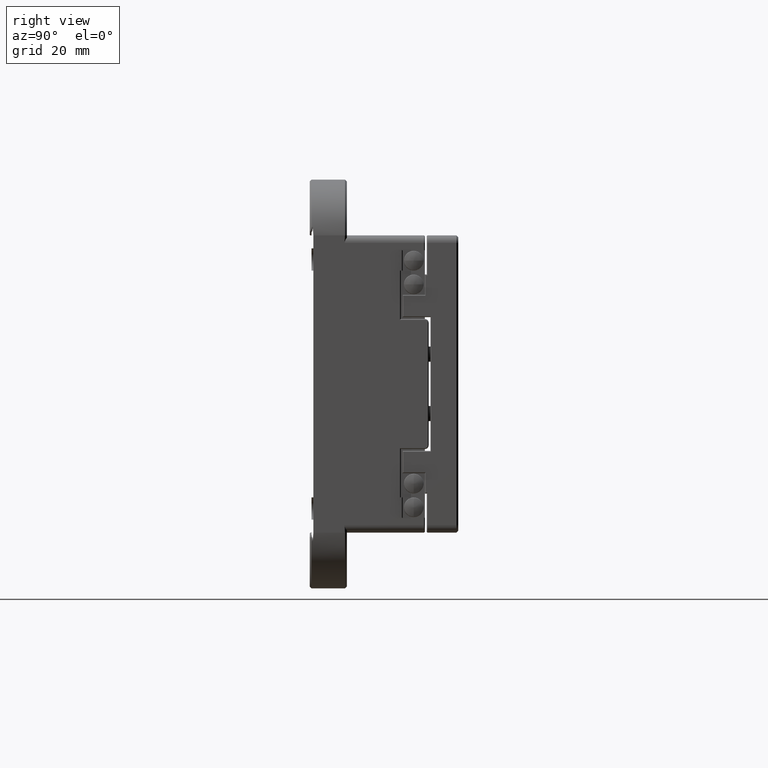
[diagram: clean part render]
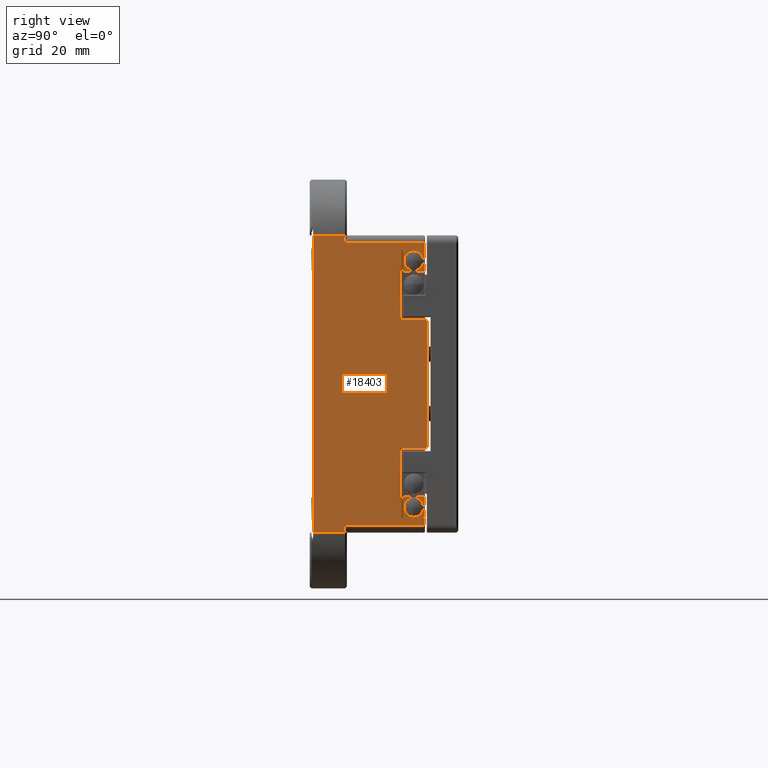
[diagram: same view with one face highlighted and labeled with its STEP entity id]
A machine part, right view. The second image highlights one B-rep face of the part: STEP entity #18403.
In plain terms, the highlighted planar face has unit normal (-1, 0, 0).
Its self-contained STEP definition (entity closure, byte-faithful):
#215 = PLANE ( 'NONE',  #32388 ) ;
#306 = CARTESIAN_POINT ( 'NONE',  ( 295.5016253540470100, 9.367254049578399100, 11.61789066043777300 ) ) ;
#399 = CARTESIAN_POINT ( 'NONE',  ( 295.5016253540470100, 24.80000000000002900, 13.61789066043776800 ) ) ;
#489 = EDGE_CURVE ( 'NONE', #47723, #38478, #13949, .T. ) ;
#1171 = VERTEX_POINT ( 'NONE', #48884 ) ;
#1351 = DIRECTION ( 'NONE',  ( 0.0000000000000000000, 0.7071067811865340300, 0.7071067811865611200 ) ) ;
#1513 = VERTEX_POINT ( 'NONE', #7089 ) ;
#1891 = ORIENTED_EDGE ( 'NONE', *, *, #53516, .F. ) ;
#2198 = DIRECTION ( 'NONE',  ( -0.0000000000000000000, -0.0000000000000000000, -1.000000000000000000 ) ) ;
#2253 = EDGE_CURVE ( 'NONE', #21599, #20495, #51950, .T. ) ;
#2345 = ORIENTED_EDGE ( 'NONE', *, *, #16686, .F. ) ;
#2659 = VERTEX_POINT ( 'NONE', #27535 ) ;
#3549 = CARTESIAN_POINT ( 'NONE',  ( 295.5016253540470100, 30.63999999999999000, 13.61789066043779600 ) ) ;
#4032 = CARTESIAN_POINT ( 'NONE',  ( 295.5016253539497500, 30.99999999999998900, 66.11789066043776600 ) ) ;
#4087 = DIRECTION ( 'NONE',  ( 0.0000000000000000000, 0.7071067811865474600, 0.7071067811865474600 ) ) ;
#4338 = CARTESIAN_POINT ( 'NONE',  ( 295.5016253540470100, 30.99999999999998900, 19.11789066043775900 ) ) ;
#4469 = DIRECTION ( 'NONE',  ( -1.000000000000000000, -0.0000000000000000000, -0.0000000000000000000 ) ) ;
#4619 = LINE ( 'NONE', #47651, #23331 ) ;
#4677 = CARTESIAN_POINT ( 'NONE',  ( 295.5016253540634400, 27.99999999999998600, 82.81789066043775400 ) ) ;
#5030 = ORIENTED_EDGE ( 'NONE', *, *, #45442, .F. ) ;
#5043 = EDGE_CURVE ( 'NONE', #17578, #64039, #62876, .T. ) ;
#5412 = CARTESIAN_POINT ( 'NONE',  ( 295.5016253540470100, 9.367254049578450600, 87.61789066043776600 ) ) ;
#5946 = CARTESIAN_POINT ( 'NONE',  ( 295.5016253540470100, 26.99992857325062800, 80.01789066043775700 ) ) ;
#6133 = CARTESIAN_POINT ( 'NONE',  ( 295.5016253540549100, 28.76541045425929600, 80.28083590417529100 ) ) ;
#6292 = CARTESIAN_POINT ( 'NONE',  ( 295.5016253540470100, 24.80000000000001100, 89.61789066043776600 ) ) ;
#6295 = VERTEX_POINT ( 'NONE', #32420 ) ;
#6384 = LINE ( 'NONE', #25839, #48362 ) ;
#6466 = CARTESIAN_POINT ( 'NONE',  ( 295.5016253540470600, 30.99999999999999300, 49.61789066043777300 ) ) ;
#6989 = VERTEX_POINT ( 'NONE', #53211 ) ;
#7089 = CARTESIAN_POINT ( 'NONE',  ( 295.5016253540470100, 30.99999999999998600, 85.25789066043776600 ) ) ;
#7223 = ORIENTED_EDGE ( 'NONE', *, *, #30059, .F. ) ;
#7231 = DIRECTION ( 'NONE',  ( -0.0000000000000000000, -1.000000000000000000, 0.0000000000000000000 ) ) ;
#8061 = EDGE_CURVE ( 'NONE', #9156, #49940, #62502, .T. ) ;
#8071 = CARTESIAN_POINT ( 'NONE',  ( 295.5016253540470100, 25.00000000000000000, 13.97789066043780300 ) ) ;
#8201 = LINE ( 'NONE', #18323, #43244 ) ;
#8615 = VERTEX_POINT ( 'NONE', #34646 ) ;
#8686 = DIRECTION ( 'NONE',  ( -0.0000000000000000000, -0.0000000000000000000, -1.000000000000000000 ) ) ;
#8695 = DIRECTION ( 'NONE',  ( -0.0000000000000000000, -1.000000000000000000, 0.0000000000000000000 ) ) ;
#8953 = EDGE_CURVE ( 'NONE', #6989, #8615, #41439, .T. ) ;
#9156 = VERTEX_POINT ( 'NONE', #53710 ) ;
#9214 = CARTESIAN_POINT ( 'NONE',  ( 295.5016253540013600, 31.80000000004564600, 33.11789066043775900 ) ) ;
#9990 = VERTEX_POINT ( 'NONE', #40255 ) ;
#10214 = VECTOR ( 'NONE', #13193, 1000.000000000000000 ) ;
#10254 = CARTESIAN_POINT ( 'NONE',  ( 295.5016253540470100, 25.35999999999998900, 19.21789066043781700 ) ) ;
#10720 = DIRECTION ( 'NONE',  ( 0.0000000000000000000, 1.000000000000000000, -0.0000000000000000000 ) ) ;
#10848 = DIRECTION ( 'NONE',  ( -0.0000000000000000000, -1.000000000000000000, 0.0000000000000000000 ) ) ;
#11097 = CARTESIAN_POINT ( 'NONE',  ( 295.5016253540470100, 30.99999999999998900, 66.91789066043776300 ) ) ;
#11220 = EDGE_CURVE ( 'NONE', #32802, #35915, #27556, .T. ) ;
#11395 = ORIENTED_EDGE ( 'NONE', *, *, #11220, .F. ) ;
#11440 = EDGE_CURVE ( 'NONE', #52682, #49940, #14294, .T. ) ;
#11549 = CARTESIAN_POINT ( 'NONE',  ( 295.5016253540025000, 30.99999999999999300, 66.91789066041917500 ) ) ;
#11657 = ORIENTED_EDGE ( 'NONE', *, *, #26060, .F. ) ;
#11729 = CARTESIAN_POINT ( 'NONE',  ( 295.5016253540470100, 24.99999999999998900, 18.85789066043781000 ) ) ;
#11885 = CARTESIAN_POINT ( 'NONE',  ( 295.5016253540470100, 30.99999999999999600, 13.97789066043781700 ) ) ;
#11900 = VECTOR ( 'NONE', #12127, 1000.000000000000000 ) ;
#12127 = DIRECTION ( 'NONE',  ( -0.0000000000000000000, -1.000000000000000000, 0.0000000000000000000 ) ) ;
#12173 = LINE ( 'NONE', #20945, #55701 ) ;
#12892 = CARTESIAN_POINT ( 'NONE',  ( 295.5016253540470100, 30.99999999999998900, 13.61789066043780800 ) ) ;
#13193 = DIRECTION ( 'NONE',  ( -0.0000000000000000000, -1.000000000000000000, 0.0000000000000000000 ) ) ;
#13243 = DIRECTION ( 'NONE',  ( -0.0000000000000000000, -0.0000000000000000000, -1.000000000000000000 ) ) ;
#13397 = CARTESIAN_POINT ( 'NONE',  ( 295.5016253540470100, 30.99999999999998900, 85.61789066043778000 ) ) ;
#13446 = CARTESIAN_POINT ( 'NONE',  ( 295.5016253540470100, 9.367254049578450600, 87.61789066043776600 ) ) ;
#13500 = AXIS2_PLACEMENT_3D ( 'NONE', #18944, #24801, #53730 ) ;
#13582 = VERTEX_POINT ( 'NONE', #399 ) ;
#13645 = VECTOR ( 'NONE', #16153, 1000.000000000000000 ) ;
#13825 = VECTOR ( 'NONE', #31893, 1000.000000000000000 ) ;
#13949 = LINE ( 'NONE', #43152, #21733 ) ;
#14076 = CIRCLE ( 'NONE', #23520, 0.7999999999756396400 ) ;
#14110 = CARTESIAN_POINT ( 'NONE',  ( 295.5016253540470100, 9.367254049578399100, 11.61789066043777300 ) ) ;
#14237 = CIRCLE ( 'NONE', #20388, 2.650000000003999800 ) ;
#14294 = LINE ( 'NONE', #33536, #25934 ) ;
#14808 = EDGE_CURVE ( 'NONE', #18347, #48309, #30198, .T. ) ;
#14849 = DIRECTION ( 'NONE',  ( 0.0000000000000000000, 0.0000000000000000000, 1.000000000000000000 ) ) ;
#15385 = ORIENTED_EDGE ( 'NONE', *, *, #52149, .T. ) ;
#15517 = VECTOR ( 'NONE', #50923, 1000.000000000000000 ) ;
#15526 = ORIENTED_EDGE ( 'NONE', *, *, #489, .F. ) ;
#15598 = ORIENTED_EDGE ( 'NONE', *, *, #64114, .F. ) ;
#15692 = LINE ( 'NONE', #28186, #27352 ) ;
#15735 = EDGE_CURVE ( 'NONE', #1171, #63504, #61156, .T. ) ;
#15997 = VECTOR ( 'NONE', #45515, 1000.000000000000000 ) ;
#16010 = EDGE_CURVE ( 'NONE', #13582, #30056, #12173, .T. ) ;
#16072 = VERTEX_POINT ( 'NONE', #46990 ) ;
#16153 = DIRECTION ( 'NONE',  ( -0.0000000000000000000, -1.000000000000000000, 0.0000000000000000000 ) ) ;
#16276 = LINE ( 'NONE', #6292, #26382 ) ;
#16471 = EDGE_CURVE ( 'NONE', #51694, #34252, #25338, .T. ) ;
#16621 = ORIENTED_EDGE ( 'NONE', *, *, #2253, .F. ) ;
#16686 = EDGE_CURVE ( 'NONE', #36566, #1513, #26155, .T. ) ;
#17118 = LINE ( 'NONE', #38520, #20987 ) ;
#17448 = CARTESIAN_POINT ( 'NONE',  ( 295.5016253540470100, 25.35999999999998500, 80.01789066043775700 ) ) ;
#17578 = VERTEX_POINT ( 'NONE', #40900 ) ;
#17685 = DIRECTION ( 'NONE',  ( 0.0000000000000000000, -0.7071067811865474600, 0.7071067811865474600 ) ) ;
#18114 = DIRECTION ( 'NONE',  ( 0.0000000000000000000, 1.000000000000000000, -0.0000000000000000000 ) ) ;
#18122 = FACE_OUTER_BOUND ( 'NONE', #59007, .T. ) ;
#18323 = CARTESIAN_POINT ( 'NONE',  ( 295.5016253540470100, 30.99999999999998900, 11.61789066043778000 ) ) ;
#18347 = VERTEX_POINT ( 'NONE', #54636 ) ;
#18403 = ADVANCED_FACE ( 'NONE', ( #18122 ), #215, .F. ) ;
#18654 = DIRECTION ( 'NONE',  ( 6.123233995736767300E-017, -6.123233995736420900E-017, 1.000000000000000000 ) ) ;
#18944 = CARTESIAN_POINT ( 'NONE',  ( 295.5016253540634400, 27.99999999999998600, 82.81789066043775400 ) ) ;
#18958 = CARTESIAN_POINT ( 'NONE',  ( 295.5016253540470100, 30.99999999999998600, 80.37789066043775700 ) ) ;
#19056 = CARTESIAN_POINT ( 'NONE',  ( 295.5016253540470100, 9.499999999999955600, 9.617890660437764100 ) ) ;
#19620 = CARTESIAN_POINT ( 'NONE',  ( 295.5016253540470100, 24.99999999999998900, 89.61789066043776600 ) ) ;
#19686 = CARTESIAN_POINT ( 'NONE',  ( 295.5016253540470100, 24.99999999999998600, 85.25789066043776600 ) ) ;
#19789 = CIRCLE ( 'NONE', #52398, 0.8000000000265572500 ) ;
#19828 = ORIENTED_EDGE ( 'NONE', *, *, #57166, .F. ) ;
#19971 = VECTOR ( 'NONE', #28119, 1000.000000000000000 ) ;
#20239 = LINE ( 'NONE', #58465, #60620 ) ;
#20388 = AXIS2_PLACEMENT_3D ( 'NONE', #55239, #25257, #40490 ) ;
#20447 = EDGE_CURVE ( 'NONE', #57450, #2659, #55910, .T. ) ;
#20495 = VERTEX_POINT ( 'NONE', #44832 ) ;
#20723 = VERTEX_POINT ( 'NONE', #27594 ) ;
#20941 = DIRECTION ( 'NONE',  ( -1.000000000000000000, 0.0000000000000000000, 0.0000000000000000000 ) ) ;
#20945 = CARTESIAN_POINT ( 'NONE',  ( 295.5016253540470100, 30.99999999999998900, 13.61789066043776800 ) ) ;
#20987 = VECTOR ( 'NONE', #8695, 1000.000000000000000 ) ;
#21233 = VECTOR ( 'NONE', #25343, 1000.000000000000000 ) ;
#21251 = EDGE_CURVE ( 'NONE', #35915, #43774, #24731, .T. ) ;
#21427 = CARTESIAN_POINT ( 'NONE',  ( 295.5016253540470100, 30.99999999999998600, 80.37789066043774300 ) ) ;
#21428 = CARTESIAN_POINT ( 'NONE',  ( 295.5016253540470100, 24.99999999999998900, 18.85789066043780300 ) ) ;
#21481 = VECTOR ( 'NONE', #37633, 1000.000000000000100 ) ;
#21599 = VERTEX_POINT ( 'NONE', #19686 ) ;
#21733 = VECTOR ( 'NONE', #28089, 1000.000000000000000 ) ;
#22053 = CARTESIAN_POINT ( 'NONE',  ( 295.5016253540470100, 31.79999999999998600, 89.61789066043776600 ) ) ;
#22566 = CARTESIAN_POINT ( 'NONE',  ( 295.5016253540470100, 30.99999999999998900, 80.01789066043775700 ) ) ;
#22651 = VECTOR ( 'NONE', #1351, 999.9999999999998900 ) ;
#22681 = DIRECTION ( 'NONE',  ( 0.0000000000000000000, 1.000000000000000000, -0.0000000000000000000 ) ) ;
#22870 = CIRCLE ( 'NONE', #46015, 2.649999999940311200 ) ;
#23102 = DIRECTION ( 'NONE',  ( -0.0000000000000000000, -1.000000000000000000, 0.0000000000000000000 ) ) ;
#23331 = VECTOR ( 'NONE', #32876, 1000.000000000000000 ) ;
#23345 = ORIENTED_EDGE ( 'NONE', *, *, #14808, .T. ) ;
#23377 = EDGE_CURVE ( 'NONE', #25503, #50863, #51004, .T. ) ;
#23520 = AXIS2_PLACEMENT_3D ( 'NONE', #4032, #4469, #64243 ) ;
#23790 = CARTESIAN_POINT ( 'NONE',  ( 295.5016253540065900, 27.99999999999998600, 16.41789066043781300 ) ) ;
#23862 = CARTESIAN_POINT ( 'NONE',  ( 295.5016253540470100, 9.500000000000001800, 89.61789066043776600 ) ) ;
#24376 = DIRECTION ( 'NONE',  ( 0.0000000000000000000, 1.000000000000000000, -0.0000000000000000000 ) ) ;
#24731 = LINE ( 'NONE', #61615, #13825 ) ;
#24749 = ORIENTED_EDGE ( 'NONE', *, *, #57097, .F. ) ;
#24801 = DIRECTION ( 'NONE',  ( 1.000000000000000000, 0.0000000000000000000, 0.0000000000000000000 ) ) ;
#24856 = LINE ( 'NONE', #40726, #62923 ) ;
#24943 = DIRECTION ( 'NONE',  ( 0.0000000000000000000, 0.0000000000000000000, 1.000000000000000000 ) ) ;
#25118 = LINE ( 'NONE', #50117, #21233 ) ;
#25253 = ORIENTED_EDGE ( 'NONE', *, *, #5043, .F. ) ;
#25257 = DIRECTION ( 'NONE',  ( 1.000000000000000000, -0.0000000000000000000, -0.0000000000000000000 ) ) ;
#25290 = VERTEX_POINT ( 'NONE', #11885 ) ;
#25338 = LINE ( 'NONE', #28200, #21481 ) ;
#25343 = DIRECTION ( 'NONE',  ( -0.0000000000000000000, -0.7071067811865473500, -0.7071067811865477900 ) ) ;
#25462 = VERTEX_POINT ( 'NONE', #62700 ) ;
#25503 = VERTEX_POINT ( 'NONE', #19056 ) ;
#25839 = CARTESIAN_POINT ( 'NONE',  ( 295.5016253540470100, 30.99999999999999300, 49.61789066043777300 ) ) ;
#25934 = VECTOR ( 'NONE', #18114, 1000.000000000000000 ) ;
#26060 = EDGE_CURVE ( 'NONE', #39843, #35275, #29234, .T. ) ;
#26089 = ORIENTED_EDGE ( 'NONE', *, *, #16010, .F. ) ;
#26155 = LINE ( 'NONE', #54083, #49420 ) ;
#26285 = CARTESIAN_POINT ( 'NONE',  ( 295.5016253540551900, 27.25639673928181100, 80.27435882646894100 ) ) ;
#26382 = VECTOR ( 'NONE', #13243, 1000.000000000000000 ) ;
#27061 = ORIENTED_EDGE ( 'NONE', *, *, #47102, .F. ) ;
#27068 = CARTESIAN_POINT ( 'NONE',  ( 295.5016253540470100, 24.80000000000001100, 80.11789066043776600 ) ) ;
#27352 = VECTOR ( 'NONE', #18654, 1000.000000000000000 ) ;
#27535 = CARTESIAN_POINT ( 'NONE',  ( 295.5016253540470100, 24.80000000000002200, 19.11789066043775900 ) ) ;
#27556 = LINE ( 'NONE', #12892, #46219 ) ;
#27594 = CARTESIAN_POINT ( 'NONE',  ( 295.5016253540065900, 27.99999999999998600, 13.76789066043381400 ) ) ;
#27942 = VERTEX_POINT ( 'NONE', #33478 ) ;
#28089 = DIRECTION ( 'NONE',  ( -0.0000000000000000000, -0.0000000000000000000, -1.000000000000000000 ) ) ;
#28119 = DIRECTION ( 'NONE',  ( -0.0000000000000000000, -0.0000000000000000000, -1.000000000000000000 ) ) ;
#28186 = CARTESIAN_POINT ( 'NONE',  ( 295.5016253540470100, 0.9999999999999744600, 49.61789066043776600 ) ) ;
#28200 = CARTESIAN_POINT ( 'NONE',  ( 295.5016253540470100, 30.63999999999999000, 19.21789066043781700 ) ) ;
#28343 = VECTOR ( 'NONE', #49815, 1000.000000000000000 ) ;
#28462 = EDGE_CURVE ( 'NONE', #63504, #36566, #29677, .T. ) ;
#28659 = ORIENTED_EDGE ( 'NONE', *, *, #56464, .F. ) ;
#28682 = DIRECTION ( 'NONE',  ( -0.0000000000000000000, -1.000000000000000000, 0.0000000000000000000 ) ) ;
#28930 = LINE ( 'NONE', #18958, #58487 ) ;
#29083 = CARTESIAN_POINT ( 'NONE',  ( 295.5016253540470100, 9.499999999999955600, 10.28749424166331600 ) ) ;
#29182 = ORIENTED_EDGE ( 'NONE', *, *, #33411, .F. ) ;
#29234 = LINE ( 'NONE', #19620, #47888 ) ;
#29305 = CARTESIAN_POINT ( 'NONE',  ( 295.5016253540470100, 9.499999999999955600, 9.617890660437764100 ) ) ;
#29677 = LINE ( 'NONE', #13397, #10214 ) ;
#29987 = ORIENTED_EDGE ( 'NONE', *, *, #45078, .F. ) ;
#30056 = VERTEX_POINT ( 'NONE', #62123 ) ;
#30059 = EDGE_CURVE ( 'NONE', #56919, #60299, #16276, .T. ) ;
#30071 = CARTESIAN_POINT ( 'NONE',  ( 295.5016253540470100, 30.99999999999998900, 89.61789066043776600 ) ) ;
#30198 = LINE ( 'NONE', #5946, #46551 ) ;
#30715 = ORIENTED_EDGE ( 'NONE', *, *, #56636, .F. ) ;
#30904 = ORIENTED_EDGE ( 'NONE', *, *, #58520, .F. ) ;
#31039 = VERTEX_POINT ( 'NONE', #6133 ) ;
#31060 = ORIENTED_EDGE ( 'NONE', *, *, #56210, .F. ) ;
#31132 = AXIS2_PLACEMENT_3D ( 'NONE', #23790, #53808, #58993 ) ;
#31295 = DIRECTION ( 'NONE',  ( 0.0000000000000000000, 1.000000000000000000, -0.0000000000000000000 ) ) ;
#31333 = VERTEX_POINT ( 'NONE', #43758 ) ;
#31427 = VERTEX_POINT ( 'NONE', #5412 ) ;
#31689 = CARTESIAN_POINT ( 'NONE',  ( 295.5016253539556600, 30.99999999999999600, 33.11789066043775900 ) ) ;
#31893 = DIRECTION ( 'NONE',  ( -0.0000000000000000000, -0.0000000000000000000, -1.000000000000000000 ) ) ;
#31988 = LINE ( 'NONE', #21428, #22651 ) ;
#32069 = CARTESIAN_POINT ( 'NONE',  ( 295.5016253540462700, 28.01414213562371500, 81.03210422281085800 ) ) ;
#32236 = CARTESIAN_POINT ( 'NONE',  ( 295.5016253540470100, 24.99999999999998600, 80.37789066043775700 ) ) ;
#32388 = AXIS2_PLACEMENT_3D ( 'NONE', #30071, #20941, #40740 ) ;
#32420 = CARTESIAN_POINT ( 'NONE',  ( 295.5016253540350100, 28.76541045429631500, 18.95494541673731000 ) ) ;
#32624 = CARTESIAN_POINT ( 'NONE',  ( 295.5016253540470100, 0.9999999999999713600, 9.617890660437764100 ) ) ;
#32802 = VERTEX_POINT ( 'NONE', #3549 ) ;
#32876 = DIRECTION ( 'NONE',  ( 0.0000000000000000000, 1.000000000000000000, 1.224646799147353200E-016 ) ) ;
#33200 = VECTOR ( 'NONE', #7231, 1000.000000000000000 ) ;
#33308 = LINE ( 'NONE', #42459, #61257 ) ;
#33405 = ORIENTED_EDGE ( 'NONE', *, *, #55053, .F. ) ;
#33411 = EDGE_CURVE ( 'NONE', #30056, #39843, #56374, .T. ) ;
#33478 = CARTESIAN_POINT ( 'NONE',  ( 295.5016253540465500, 29.02835569799681900, 80.01789066043775700 ) ) ;
#33536 = CARTESIAN_POINT ( 'NONE',  ( 295.5016253540470100, 30.99999999999998900, 19.21789066043781700 ) ) ;
#33847 = VECTOR ( 'NONE', #17685, 1000.000000000000100 ) ;
#34109 = EDGE_CURVE ( 'NONE', #18347, #31333, #53961, .T. ) ;
#34119 = DIRECTION ( 'NONE',  ( 0.0000000000000000000, -0.7071067811865474600, -0.7071067811865474600 ) ) ;
#34252 = VERTEX_POINT ( 'NONE', #59382 ) ;
#34646 = CARTESIAN_POINT ( 'NONE',  ( 295.5016253540470100, 24.30000000000001800, 32.31789066043776200 ) ) ;
#34700 = ORIENTED_EDGE ( 'NONE', *, *, #21251, .F. ) ;
#35036 = EDGE_CURVE ( 'NONE', #60113, #25462, #28930, .T. ) ;
#35183 = VECTOR ( 'NONE', #28682, 1000.000000000000000 ) ;
#35275 = VERTEX_POINT ( 'NONE', #11729 ) ;
#35915 = VERTEX_POINT ( 'NONE', #51903 ) ;
#36066 = DIRECTION ( 'NONE',  ( 0.0000000000000000000, 1.224646799147353200E-016, -1.000000000000000000 ) ) ;
#36199 = VECTOR ( 'NONE', #31295, 1000.000000000000000 ) ;
#36353 = ORIENTED_EDGE ( 'NONE', *, *, #8953, .F. ) ;
#36455 = CARTESIAN_POINT ( 'NONE',  ( 295.5016253540470100, 30.79999999999998300, 89.61789066043776600 ) ) ;
#36566 = VERTEX_POINT ( 'NONE', #39196 ) ;
#36944 = DIRECTION ( 'NONE',  ( 0.0000000000000000000, 0.0000000000000000000, 1.000000000000000000 ) ) ;
#37064 = ORIENTED_EDGE ( 'NONE', *, *, #11440, .F. ) ;
#37633 = DIRECTION ( 'NONE',  ( 0.0000000000000000000, 0.7071067811865474600, -0.7071067811865474600 ) ) ;
#38165 = CIRCLE ( 'NONE', #31132, 2.650000000003999800 ) ;
#38477 = CARTESIAN_POINT ( 'NONE',  ( 295.5016253540470100, 9.454981793377987400, 88.28167149029880500 ) ) ;
#38478 = VERTEX_POINT ( 'NONE', #64381 ) ;
#38520 = CARTESIAN_POINT ( 'NONE',  ( 295.5016253540470100, 30.99999999999998900, 80.11789066043776600 ) ) ;
#38616 = ORIENTED_EDGE ( 'NONE', *, *, #41479, .F. ) ;
#38869 = ORIENTED_EDGE ( 'NONE', *, *, #60423, .F. ) ;
#39196 = CARTESIAN_POINT ( 'NONE',  ( 295.5016253540470100, 30.63999999999997600, 85.61789066043778000 ) ) ;
#39386 = ORIENTED_EDGE ( 'NONE', *, *, #61381, .F. ) ;
#39839 = EDGE_CURVE ( 'NONE', #31039, #54647, #39934, .T. ) ;
#39843 = VERTEX_POINT ( 'NONE', #8071 ) ;
#39934 = CIRCLE ( 'NONE', #13500, 2.649999999940311200 ) ;
#40036 = ORIENTED_EDGE ( 'NONE', *, *, #48432, .T. ) ;
#40162 = CARTESIAN_POINT ( 'NONE',  ( 295.5016253540470100, 30.79999999999998300, 85.61789066043778000 ) ) ;
#40255 = CARTESIAN_POINT ( 'NONE',  ( 295.5016253540470100, 9.500000000000001800, 89.61789066043776600 ) ) ;
#40490 = DIRECTION ( 'NONE',  ( 0.0000000000000000000, 1.309225264886180200E-015, 1.000000000000000000 ) ) ;
#40708 = EDGE_CURVE ( 'NONE', #35275, #52682, #31988, .T. ) ;
#40726 = CARTESIAN_POINT ( 'NONE',  ( 295.5016253540470100, 24.80000000000001800, 89.61789066043776600 ) ) ;
#40740 = DIRECTION ( 'NONE',  ( 0.0000000000000000000, 0.0000000000000000000, 1.000000000000000000 ) ) ;
#40900 = CARTESIAN_POINT ( 'NONE',  ( 295.5016253539983500, 31.80000000004861600, 66.11789066043776600 ) ) ;
#41181 = CARTESIAN_POINT ( 'NONE',  ( 295.5016253540470100, 24.30000000000001500, 80.11789066043776600 ) ) ;
#41375 = EDGE_CURVE ( 'NONE', #41641, #9990, #4619, .T. ) ;
#41439 = LINE ( 'NONE', #43526, #35183 ) ;
#41479 = EDGE_CURVE ( 'NONE', #20723, #6295, #38165, .T. ) ;
#41641 = VERTEX_POINT ( 'NONE', #55532 ) ;
#41677 = LINE ( 'NONE', #58918, #45508 ) ;
#42424 = EDGE_CURVE ( 'NONE', #8615, #57450, #33308, .T. ) ;
#42459 = CARTESIAN_POINT ( 'NONE',  ( 295.5016253540470100, 24.30000000000001800, 89.61789066043776600 ) ) ;
#43152 = CARTESIAN_POINT ( 'NONE',  ( 295.5016253540470100, 24.30000000000001100, 89.61789066043776600 ) ) ;
#43244 = VECTOR ( 'NONE', #23102, 1000.000000000000000 ) ;
#43427 = LINE ( 'NONE', #63642, #51949 ) ;
#43526 = CARTESIAN_POINT ( 'NONE',  ( 295.5016253540470100, 30.99999999999998900, 32.31789066043776200 ) ) ;
#43758 = CARTESIAN_POINT ( 'NONE',  ( 295.5016253540470100, 25.35999999999998200, 80.01789066043775700 ) ) ;
#43774 = VERTEX_POINT ( 'NONE', #59513 ) ;
#43819 = CARTESIAN_POINT ( 'NONE',  ( 295.5016253540470100, 30.99999999999998900, 85.61789066043776600 ) ) ;
#43957 = CARTESIAN_POINT ( 'NONE',  ( 295.5016253540470100, 24.99999999999998600, 85.25789066043776600 ) ) ;
#44067 = ORIENTED_EDGE ( 'NONE', *, *, #42424, .F. ) ;
#44178 = VECTOR ( 'NONE', #4087, 1000.000000000000100 ) ;
#44636 = EDGE_CURVE ( 'NONE', #25462, #27942, #59620, .T. ) ;
#44643 = VERTEX_POINT ( 'NONE', #32236 ) ;
#44832 = CARTESIAN_POINT ( 'NONE',  ( 295.5016253540470100, 25.35999999999998200, 85.61789066043775200 ) ) ;
#44910 = CARTESIAN_POINT ( 'NONE',  ( 295.5016253540399600, 26.99992857325063200, 19.21789066043781700 ) ) ;
#45078 = EDGE_CURVE ( 'NONE', #38478, #50608, #50975, .T. ) ;
#45116 = CARTESIAN_POINT ( 'NONE',  ( 295.5016253540470100, 30.99999999999998900, 19.21789066043781700 ) ) ;
#45374 = ORIENTED_EDGE ( 'NONE', *, *, #8061, .T. ) ;
#45396 = CARTESIAN_POINT ( 'NONE',  ( 295.5016253540470100, 30.63999999999998600, 19.21789066043781700 ) ) ;
#45442 = EDGE_CURVE ( 'NONE', #61890, #25503, #56501, .T. ) ;
#45508 = VECTOR ( 'NONE', #63900, 1000.000000000000000 ) ;
#45515 = DIRECTION ( 'NONE',  ( 0.0000000000000000000, 1.000000000000000000, -0.0000000000000000000 ) ) ;
#45713 = DIRECTION ( 'NONE',  ( -0.0000000000000000000, -0.0000000000000000000, -1.000000000000000000 ) ) ;
#46015 = AXIS2_PLACEMENT_3D ( 'NONE', #4677, #54914, #24943 ) ;
#46219 = VECTOR ( 'NONE', #22681, 1000.000000000000000 ) ;
#46318 = LINE ( 'NONE', #17448, #33847 ) ;
#46551 = VECTOR ( 'NONE', #55943, 1000.000000000000000 ) ;
#46773 = EDGE_CURVE ( 'NONE', #34252, #25290, #59200, .T. ) ;
#46990 = CARTESIAN_POINT ( 'NONE',  ( 295.5016253540470100, 29.02835569799681900, 19.21789066043781300 ) ) ;
#47102 = EDGE_CURVE ( 'NONE', #50608, #17578, #14076, .T. ) ;
#47167 = ORIENTED_EDGE ( 'NONE', *, *, #40708, .F. ) ;
#47651 = CARTESIAN_POINT ( 'NONE',  ( 295.5016253540470100, -1.324680762887906900E-014, 89.61789066043776600 ) ) ;
#47723 = VERTEX_POINT ( 'NONE', #41181 ) ;
#47888 = VECTOR ( 'NONE', #14849, 1000.000000000000000 ) ;
#48309 = VERTEX_POINT ( 'NONE', #26285 ) ;
#48362 = VECTOR ( 'NONE', #50841, 1000.000000000000000 ) ;
#48432 = EDGE_CURVE ( 'NONE', #31039, #27942, #52071, .T. ) ;
#48884 = CARTESIAN_POINT ( 'NONE',  ( 295.5016253540470100, 30.79999999999998300, 87.61789066043776600 ) ) ;
#49098 = CARTESIAN_POINT ( 'NONE',  ( 295.5016253540470100, 9.454981793377939400, 10.95410983057671700 ) ) ;
#49120 = VECTOR ( 'NONE', #36066, 1000.000000000000000 ) ;
#49317 = ORIENTED_EDGE ( 'NONE', *, *, #39839, .F. ) ;
#49420 = VECTOR ( 'NONE', #64022, 1000.000000000000100 ) ;
#49815 = DIRECTION ( 'NONE',  ( 0.0000000000000000000, -0.7071067811865507900, 0.7071067811865441300 ) ) ;
#49940 = VERTEX_POINT ( 'NONE', #44910 ) ;
#50117 = CARTESIAN_POINT ( 'NONE',  ( 295.5016253540470600, 28.01414213562373600, 18.20367709806472700 ) ) ;
#50472 = CARTESIAN_POINT ( 'NONE',  ( 295.5016253540634400, 27.99999999999998600, 85.46789066037806000 ) ) ;
#50512 = ORIENTED_EDGE ( 'NONE', *, *, #35036, .F. ) ;
#50608 = VERTEX_POINT ( 'NONE', #11549 ) ;
#50841 = DIRECTION ( 'NONE',  ( 0.0000000000000000000, 1.224646799147353200E-016, -1.000000000000000000 ) ) ;
#50863 = VERTEX_POINT ( 'NONE', #32624 ) ;
#50923 = DIRECTION ( 'NONE',  ( -0.0000000000000000000, 0.7071067811865476800, -0.7071067811865474600 ) ) ;
#50975 = LINE ( 'NONE', #11097, #36199 ) ;
#51004 = LINE ( 'NONE', #56131, #13645 ) ;
#51259 = ORIENTED_EDGE ( 'NONE', *, *, #53520, .F. ) ;
#51694 = VERTEX_POINT ( 'NONE', #45396 ) ;
#51903 = CARTESIAN_POINT ( 'NONE',  ( 295.5016253540470100, 30.80000000000002200, 13.61789066043779800 ) ) ;
#51921 = DIRECTION ( 'NONE',  ( -1.000000000000000000, -0.0000000000000000000, -0.0000000000000000000 ) ) ;
#51949 = VECTOR ( 'NONE', #34119, 1000.000000000000100 ) ;
#51950 = LINE ( 'NONE', #43957, #44178 ) ;
#52071 = LINE ( 'NONE', #32069, #15517 ) ;
#52149 = EDGE_CURVE ( 'NONE', #16072, #6295, #25118, .T. ) ;
#52398 = AXIS2_PLACEMENT_3D ( 'NONE', #31689, #51921, #36944 ) ;
#52609 = ORIENTED_EDGE ( 'NONE', *, *, #34109, .F. ) ;
#52682 = VERTEX_POINT ( 'NONE', #10254 ) ;
#53211 = CARTESIAN_POINT ( 'NONE',  ( 295.5016253540013600, 30.99999999999999600, 32.31789066039210200 ) ) ;
#53286 = DIRECTION ( 'NONE',  ( 0.0000000000000000000, 0.0000000000000000000, 1.000000000000000000 ) ) ;
#53475 = ORIENTED_EDGE ( 'NONE', *, *, #44636, .F. ) ;
#53516 = EDGE_CURVE ( 'NONE', #60299, #47723, #17118, .T. ) ;
#53520 = EDGE_CURVE ( 'NONE', #44643, #21599, #20239, .T. ) ;
#53643 = ORIENTED_EDGE ( 'NONE', *, *, #58250, .F. ) ;
#53710 = CARTESIAN_POINT ( 'NONE',  ( 295.5016253540499100, 27.25639673924468200, 18.96142249444376300 ) ) ;
#53730 = DIRECTION ( 'NONE',  ( 0.0000000000000000000, 0.0000000000000000000, 1.000000000000000000 ) ) ;
#53747 = DIRECTION ( 'NONE',  ( 0.0000000000000000000, -0.7071067811865474600, -0.7071067811865474600 ) ) ;
#53808 = DIRECTION ( 'NONE',  ( 1.000000000000000000, -0.0000000000000000000, -0.0000000000000000000 ) ) ;
#53961 = LINE ( 'NONE', #22566, #11900 ) ;
#54083 = CARTESIAN_POINT ( 'NONE',  ( 295.5016253540470100, 30.63999999999998600, 85.61789066043776600 ) ) ;
#54494 = CARTESIAN_POINT ( 'NONE',  ( 295.5016253540363800, 26.99992857325063200, 19.21789066043781700 ) ) ;
#54636 = CARTESIAN_POINT ( 'NONE',  ( 295.5016253540470100, 26.99992857325062400, 80.01789066043775700 ) ) ;
#54647 = VERTEX_POINT ( 'NONE', #50472 ) ;
#54694 = DIRECTION ( 'NONE',  ( -0.0000000000000000000, -0.7071067811865483500, 0.7071067811865468000 ) ) ;
#54730 = ORIENTED_EDGE ( 'NONE', *, *, #28462, .F. ) ;
#54767 = ORIENTED_EDGE ( 'NONE', *, *, #60550, .F. ) ;
#54895 = ORIENTED_EDGE ( 'NONE', *, *, #56451, .F. ) ;
#54914 = DIRECTION ( 'NONE',  ( 1.000000000000000000, 0.0000000000000000000, 0.0000000000000000000 ) ) ;
#55053 = EDGE_CURVE ( 'NONE', #25290, #32802, #43427, .T. ) ;
#55110 = VECTOR ( 'NONE', #2198, 1000.000000000000000 ) ;
#55232 = CARTESIAN_POINT ( 'NONE',  ( 295.5016253540470100, 25.35999999999999200, 13.61789066043780800 ) ) ;
#55239 = CARTESIAN_POINT ( 'NONE',  ( 295.5016253540065900, 27.99999999999998600, 16.41789066043781300 ) ) ;
#55532 = CARTESIAN_POINT ( 'NONE',  ( 295.5016253540470100, 0.9999999999999655800, 89.61789066043776600 ) ) ;
#55564 = LINE ( 'NONE', #43819, #57133 ) ;
#55659 = LINE ( 'NONE', #45116, #15997 ) ;
#55701 = VECTOR ( 'NONE', #10720, 1000.000000000000000 ) ;
#55910 = LINE ( 'NONE', #4338, #56719 ) ;
#55943 = DIRECTION ( 'NONE',  ( -0.0000000000000000000, 0.7071067811865479100, 0.7071067811865471300 ) ) ;
#56131 = CARTESIAN_POINT ( 'NONE',  ( 295.5016253540470100, 30.99999999999998900, 9.617890660437764100 ) ) ;
#56210 = EDGE_CURVE ( 'NONE', #16072, #51694, #55659, .T. ) ;
#56374 = LINE ( 'NONE', #55232, #28343 ) ;
#56451 = EDGE_CURVE ( 'NONE', #31333, #44643, #46318, .T. ) ;
#56464 = EDGE_CURVE ( 'NONE', #43774, #61890, #8201, .T. ) ;
#56501 = B_SPLINE_CURVE_WITH_KNOTS ( 'NONE', 3,
 ( #14110, #49098, #29083, #29305 ),
 .UNSPECIFIED., .F., .F.,
 ( 4, 4 ),
 ( 8.673617379884035500E-018, 0.002004400530670784200 ),
 .UNSPECIFIED. ) ;
#56588 = CARTESIAN_POINT ( 'NONE',  ( 295.5016253540470100, 30.99999999999998900, 80.01789066043775700 ) ) ;
#56636 = EDGE_CURVE ( 'NONE', #31427, #1171, #41677, .T. ) ;
#56719 = VECTOR ( 'NONE', #24376, 1000.000000000000000 ) ;
#56919 = VERTEX_POINT ( 'NONE', #57143 ) ;
#57049 = VECTOR ( 'NONE', #54694, 1000.000000000000000 ) ;
#57097 = EDGE_CURVE ( 'NONE', #9990, #31427, #61892, .T. ) ;
#57133 = VECTOR ( 'NONE', #10848, 1000.000000000000000 ) ;
#57143 = CARTESIAN_POINT ( 'NONE',  ( 295.5016253540470100, 24.80000000000001500, 85.61789066043775200 ) ) ;
#57166 = EDGE_CURVE ( 'NONE', #54647, #48309, #22870, .T. ) ;
#57450 = VERTEX_POINT ( 'NONE', #61587 ) ;
#58156 = ORIENTED_EDGE ( 'NONE', *, *, #15735, .F. ) ;
#58250 = EDGE_CURVE ( 'NONE', #1513, #60113, #6384, .T. ) ;
#58465 = CARTESIAN_POINT ( 'NONE',  ( 295.5016253540470100, 24.99999999999998600, 89.61789066043776600 ) ) ;
#58480 = ORIENTED_EDGE ( 'NONE', *, *, #46773, .F. ) ;
#58487 = VECTOR ( 'NONE', #53747, 1000.000000000000100 ) ;
#58520 = EDGE_CURVE ( 'NONE', #50863, #41641, #15692, .T. ) ;
#58630 = CARTESIAN_POINT ( 'NONE',  ( 295.5016253540470100, 9.500000000000001800, 88.94828707921220700 ) ) ;
#58918 = CARTESIAN_POINT ( 'NONE',  ( 295.5016253540470100, 30.99999999999998900, 87.61789066043776600 ) ) ;
#58993 = DIRECTION ( 'NONE',  ( 0.0000000000000000000, 0.0000000000000000000, 1.000000000000000000 ) ) ;
#59007 = EDGE_LOOP ( 'NONE', ( #27061, #29987, #15526, #1891, #7223, #38869, #16621, #51259, #54895, #52609, #23345, #19828, #49317, #40036, #53475, #50512, #53643, #2345, #54730, #58156, #30715, #24749, #64533, #30904, #63094, #5030, #28659, #34700, #11395, #33405, #58480, #61197, #31060, #15385, #38616, #39386, #45374, #37064, #47167, #11657, #29182, #26089, #15598, #64023, #44067, #36353, #54767, #25253 ) ) ;
#59200 = LINE ( 'NONE', #6466, #49120 ) ;
#59382 = CARTESIAN_POINT ( 'NONE',  ( 295.5016253540470100, 30.99999999999999300, 18.85789066043781400 ) ) ;
#59513 = CARTESIAN_POINT ( 'NONE',  ( 295.5016253540470100, 30.80000000000002600, 11.61789066043777800 ) ) ;
#59620 = LINE ( 'NONE', #56588, #33200 ) ;
#60113 = VERTEX_POINT ( 'NONE', #21427 ) ;
#60299 = VERTEX_POINT ( 'NONE', #27068 ) ;
#60423 = EDGE_CURVE ( 'NONE', #20495, #56919, #55564, .T. ) ;
#60550 = EDGE_CURVE ( 'NONE', #64039, #6989, #19789, .T. ) ;
#60620 = VECTOR ( 'NONE', #53286, 1000.000000000000000 ) ;
#61156 = LINE ( 'NONE', #36455, #19971 ) ;
#61197 = ORIENTED_EDGE ( 'NONE', *, *, #16471, .F. ) ;
#61257 = VECTOR ( 'NONE', #8686, 1000.000000000000000 ) ;
#61381 = EDGE_CURVE ( 'NONE', #9156, #20723, #14237, .T. ) ;
#61587 = CARTESIAN_POINT ( 'NONE',  ( 295.5016253540470100, 24.30000000000002900, 19.11789066043775900 ) ) ;
#61615 = CARTESIAN_POINT ( 'NONE',  ( 295.5016253540470100, 30.80000000000001800, 89.61789066043776600 ) ) ;
#61890 = VERTEX_POINT ( 'NONE', #306 ) ;
#61892 = B_SPLINE_CURVE_WITH_KNOTS ( 'NONE', 3,
 ( #23862, #58630, #38477, #13446 ),
 .UNSPECIFIED., .F., .F.,
 ( 4, 4 ),
 ( 0.0000000000000000000, 0.002004400530670785900 ),
 .UNSPECIFIED. ) ;
#62123 = CARTESIAN_POINT ( 'NONE',  ( 295.5016253540470100, 25.35999999999999900, 13.61789066043777800 ) ) ;
#62502 = LINE ( 'NONE', #54494, #57049 ) ;
#62700 = CARTESIAN_POINT ( 'NONE',  ( 295.5016253540470100, 30.63999999999998600, 80.01789066043775700 ) ) ;
#62876 = LINE ( 'NONE', #22053, #55110 ) ;
#62923 = VECTOR ( 'NONE', #45713, 1000.000000000000000 ) ;
#63094 = ORIENTED_EDGE ( 'NONE', *, *, #23377, .F. ) ;
#63504 = VERTEX_POINT ( 'NONE', #40162 ) ;
#63642 = CARTESIAN_POINT ( 'NONE',  ( 295.5016253540470100, 30.99999999999999300, 13.97789066043780800 ) ) ;
#63900 = DIRECTION ( 'NONE',  ( 0.0000000000000000000, 1.000000000000000000, -0.0000000000000000000 ) ) ;
#64022 = DIRECTION ( 'NONE',  ( 0.0000000000000000000, 0.7071067811865474600, -0.7071067811865474600 ) ) ;
#64023 = ORIENTED_EDGE ( 'NONE', *, *, #20447, .F. ) ;
#64039 = VERTEX_POINT ( 'NONE', #9214 ) ;
#64114 = EDGE_CURVE ( 'NONE', #2659, #13582, #24856, .T. ) ;
#64243 = DIRECTION ( 'NONE',  ( 0.0000000000000000000, 0.0000000000000000000, 1.000000000000000000 ) ) ;
#64381 = CARTESIAN_POINT ( 'NONE',  ( 295.5016253540470100, 24.30000000000001100, 66.91789066043776300 ) ) ;
#64533 = ORIENTED_EDGE ( 'NONE', *, *, #41375, .F. ) ;